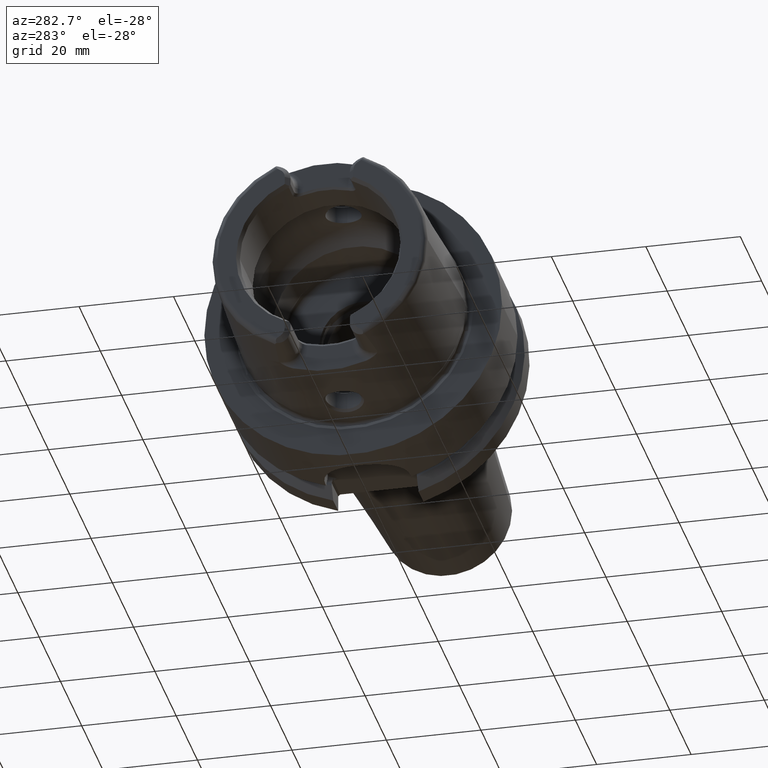
[diagram: clean part render]
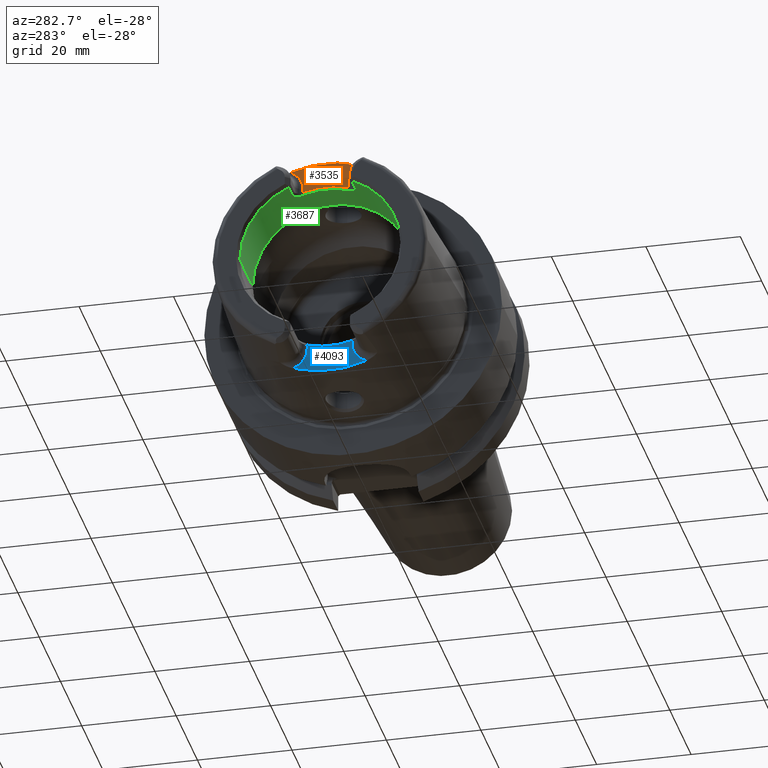
[diagram: same view with three faces highlighted in distinct colors, each labeled with its STEP entity id]
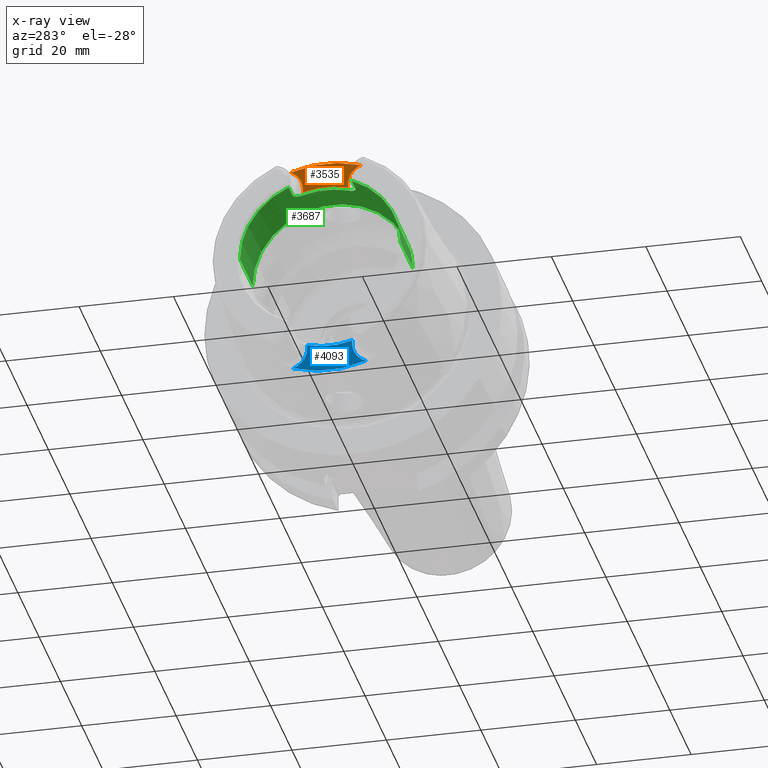
[diagram: x-ray of the same camera — body ghosted, the three highlighted faces saturated]
A machine part, auxiliary view with three faces highlighted in distinct colors.
The next image is the same camera in x-ray (body ghosted, the three faces saturated) — at least one of them is partly hidden behind the body in this view.
Their STEP definitions:

[orange] entity #3535 — the highlighted planar face has unit normal (-1, 0, 0).
#9=CARTESIAN_POINT('',(-2.6E1,0.E0,0.E0));
#10=DIRECTION('',(1.E0,0.E0,0.E0));
#11=DIRECTION('',(0.E0,3.233021702202E-1,9.462957818415E-1));
#12=AXIS2_PLACEMENT_3D('',#9,#10,#11);
#508=DIRECTION('',(0.E0,1.645939623868E-11,1.E0));
#509=VECTOR('',#508,8.529199916087E-1);
#510=CARTESIAN_POINT('',(-2.6E1,4.769999999986E0,1.681708000839E1));
#511=LINE('',#510,#509);
#512=CARTESIAN_POINT('',(-2.6E1,9.27E0,1.767E1));
#513=DIRECTION('',(-1.E0,0.E0,0.E0));
#514=DIRECTION('',(0.E0,-1.E0,0.E0));
#515=AXIS2_PLACEMENT_3D('',#512,#513,#514);
#517=CARTESIAN_POINT('',(-2.6E1,-9.27E0,1.767E1));
#518=DIRECTION('',(-1.E0,0.E0,0.E0));
#519=DIRECTION('',(0.E0,4.062693958732E-1,9.137533463560E-1));
#520=AXIS2_PLACEMENT_3D('',#517,#518,#519);
#522=DIRECTION('',(0.E0,1.641566002193E-11,-1.E0));
#523=VECTOR('',#522,8.529199916084E-1);
#524=CARTESIAN_POINT('',(-2.6E1,-4.770000000001E0,1.767E1));
#525=LINE('',#524,#523);
#526=CARTESIAN_POINT('',(-2.6E1,4.769999999986E0,1.681708000839E1));
#527=CARTESIAN_POINT('',(-2.6E1,4.148583737710E0,1.699873969073E1));
#528=CARTESIAN_POINT('',(-2.6E1,2.894384068626E0,1.728890718055E1));
#529=CARTESIAN_POINT('',(-2.6E1,9.681288020921E-1,1.750922547308E1));
#530=CARTESIAN_POINT('',(-2.6E1,-9.681288020820E-1,1.750922547309E1));
#531=CARTESIAN_POINT('',(-2.6E1,-2.894384068607E0,1.728890718055E1));
#532=CARTESIAN_POINT('',(-2.6E1,-4.148583737703E0,1.699873969073E1));
#533=CARTESIAN_POINT('',(-2.6E1,-4.769999999987E0,1.681708000839E1));
#2681=CARTESIAN_POINT('',(-2.6E1,4.77E0,1.767E1));
#2683=VERTEX_POINT('',#2681);
#2685=CARTESIAN_POINT('',(-2.6E1,-4.77E0,1.767E1));
#2687=VERTEX_POINT('',#2685);
#2689=CARTESIAN_POINT('',(-2.6E1,7.441787718571E0,2.178189005860E1));
#2690=VERTEX_POINT('',#2689);
#2695=CARTESIAN_POINT('',(-2.6E1,-7.441787718571E0,2.178189005860E1));
#2696=VERTEX_POINT('',#2695);
#2733=CARTESIAN_POINT('',(-2.6E1,4.769999999986E0,1.681708000839E1));
#2734=VERTEX_POINT('',#2733);
#2735=CARTESIAN_POINT('',(-2.6E1,-4.769999999987E0,1.681708000839E1));
#2736=VERTEX_POINT('',#2735);
#3521=CARTESIAN_POINT('',(-2.6E1,0.E0,0.E0));
#3522=DIRECTION('',(-1.E0,0.E0,0.E0));
#3523=DIRECTION('',(0.E0,0.E0,1.E0));
#3524=AXIS2_PLACEMENT_3D('',#3521,#3522,#3523);
#3525=PLANE('',#3524);
#3526=ORIENTED_EDGE('',*,*,#3432,.T.);
#3527=ORIENTED_EDGE('',*,*,#3450,.T.);
#3528=ORIENTED_EDGE('',*,*,#3095,.T.);
#3529=ORIENTED_EDGE('',*,*,#3156,.T.);
#3530=ORIENTED_EDGE('',*,*,#3174,.T.);
#3532=ORIENTED_EDGE('',*,*,#3531,.F.);
#3533=EDGE_LOOP('',(#3526,#3527,#3528,#3529,#3530,#3532));
#3534=FACE_OUTER_BOUND('',#3533,.F.);
#3535=ADVANCED_FACE('',(#3534),#3525,.T.);
#13=CIRCLE('',#12,2.301805680272E1);
#516=CIRCLE('',#515,4.5E0);
#521=CIRCLE('',#520,4.5E0);
#534=B_SPLINE_CURVE_WITH_KNOTS('',3,(#526,#527,#528,#529,#530,#531,#532,#533),
.UNSPECIFIED.,.F.,.F.,(4,1,1,1,1,4),(0.E0,2.E-1,4.E-1,6.E-1,8.E-1,1.E0),
.UNSPECIFIED.);
#3095=EDGE_CURVE('',#2690,#2696,#13,.T.);
#3156=EDGE_CURVE('',#2696,#2687,#521,.T.);
#3174=EDGE_CURVE('',#2687,#2736,#525,.T.);
#3432=EDGE_CURVE('',#2734,#2683,#511,.T.);
#3450=EDGE_CURVE('',#2683,#2690,#516,.T.);
#3531=EDGE_CURVE('',#2734,#2736,#534,.T.);

[blue] entity #4093 — the highlighted planar face has unit normal (-1, 0, 0).
#737=CARTESIAN_POINT('',(-2.2E1,-7.723914364163E0,-2.189606426911E1));
#751=CARTESIAN_POINT('',(-2.2E1,0.E0,0.E0));
#752=DIRECTION('',(1.E0,0.E0,0.E0));
#753=DIRECTION('',(0.E0,-3.326627708379E-1,-9.430458530201E-1));
#754=AXIS2_PLACEMENT_3D('',#751,#752,#753);
#844=CARTESIAN_POINT('',(-2.2E1,7.723914364163E0,-2.189606426911E1));
#921=CARTESIAN_POINT('',(-2.2E1,-4.769999999986E0,-1.681708000839E1));
#922=CARTESIAN_POINT('',(-2.2E1,-4.148583737705E0,-1.699873969073E1));
#923=CARTESIAN_POINT('',(-2.2E1,-2.894384068615E0,-1.728890718055E1));
#924=CARTESIAN_POINT('',(-2.2E1,-9.681288020891E-1,-1.750922547308E1));
#925=CARTESIAN_POINT('',(-2.2E1,9.681288020851E-1,-1.750922547308E1));
#926=CARTESIAN_POINT('',(-2.2E1,2.894384068608E0,-1.728890718055E1));
#927=CARTESIAN_POINT('',(-2.2E1,4.148583737702E0,-1.699873969073E1));
#928=CARTESIAN_POINT('',(-2.2E1,4.769999999986E0,-1.681708000839E1));
#930=DIRECTION('',(0.E0,-1.654478599520E-11,-1.E0));
#931=VECTOR('',#930,8.529199916086E-1);
#932=CARTESIAN_POINT('',(-2.2E1,-4.769999999986E0,-1.681708000839E1));
#933=LINE('',#932,#931);
#934=CARTESIAN_POINT('',(-2.2E1,-9.27E0,-1.767E1));
#935=DIRECTION('',(-1.E0,0.E0,0.E0));
#936=DIRECTION('',(0.E0,1.E0,0.E0));
#937=AXIS2_PLACEMENT_3D('',#934,#935,#936);
#939=CARTESIAN_POINT('',(-2.2E1,9.27E0,-1.767E1));
#940=DIRECTION('',(-1.E0,0.E0,0.E0));
#941=DIRECTION('',(0.E0,-3.435745857417E-1,-9.391253931358E-1));
#942=AXIS2_PLACEMENT_3D('',#939,#940,#941);
#944=DIRECTION('',(0.E0,-1.724560680178E-11,1.E0));
#945=VECTOR('',#944,8.529199916082E-1);
#946=CARTESIAN_POINT('',(-2.2E1,4.770000000001E0,-1.767E1));
#947=LINE('',#946,#945);
#2766=VERTEX_POINT('',#737);
#2767=VERTEX_POINT('',#844);
#2771=CARTESIAN_POINT('',(-2.2E1,-4.77E0,-1.767E1));
#2773=VERTEX_POINT('',#2771);
#2775=CARTESIAN_POINT('',(-2.2E1,4.77E0,-1.767E1));
#2777=VERTEX_POINT('',#2775);
#2783=VERTEX_POINT('',#921);
#2784=VERTEX_POINT('',#928);
#4078=CARTESIAN_POINT('',(-2.2E1,0.E0,0.E0));
#4079=DIRECTION('',(-1.E0,0.E0,0.E0));
#4080=DIRECTION('',(0.E0,0.E0,1.E0));
#4081=AXIS2_PLACEMENT_3D('',#4078,#4079,#4080);
#4082=PLANE('',#4081);
#4084=ORIENTED_EDGE('',*,*,#4083,.F.);
#4086=ORIENTED_EDGE('',*,*,#4085,.T.);
#4087=ORIENTED_EDGE('',*,*,#3874,.T.);
#4088=ORIENTED_EDGE('',*,*,#3893,.T.);
#4089=ORIENTED_EDGE('',*,*,#3950,.T.);
#4090=ORIENTED_EDGE('',*,*,#4071,.T.);
#4091=EDGE_LOOP('',(#4084,#4086,#4087,#4088,#4089,#4090));
#4092=FACE_OUTER_BOUND('',#4091,.F.);
#4093=ADVANCED_FACE('',(#4092),#4082,.T.);
#755=CIRCLE('',#754,2.321845136054E1);
#929=B_SPLINE_CURVE_WITH_KNOTS('',3,(#921,#922,#923,#924,#925,#926,#927,#928),
.UNSPECIFIED.,.F.,.F.,(4,1,1,1,1,4),(0.E0,2.E-1,4.E-1,6.E-1,8.E-1,1.E0),
.UNSPECIFIED.);
#938=CIRCLE('',#937,4.5E0);
#943=CIRCLE('',#942,4.5E0);
#3874=EDGE_CURVE('',#2773,#2766,#938,.T.);
#3893=EDGE_CURVE('',#2766,#2767,#755,.T.);
#3950=EDGE_CURVE('',#2767,#2777,#943,.T.);
#4071=EDGE_CURVE('',#2777,#2784,#947,.T.);
#4083=EDGE_CURVE('',#2783,#2784,#929,.T.);
#4085=EDGE_CURVE('',#2783,#2773,#933,.T.);

[green] entity #3687 — the highlighted cylindrical surface (partial cylindrical patch) has radius 17 mm, axis along (1, 0, 0).
#362=CARTESIAN_POINT('',(-3.1E1,0.E0,0.E0));
#363=DIRECTION('',(1.E0,0.E0,0.E0));
#364=DIRECTION('',(0.E0,1.E0,0.E0));
#365=AXIS2_PLACEMENT_3D('',#362,#363,#364);
#394=CARTESIAN_POINT('',(-3.1E1,0.E0,0.E0));
#395=DIRECTION('',(1.E0,0.E0,0.E0));
#396=DIRECTION('',(0.E0,-3.910839598454E-1,9.203550056102E-1));
#397=AXIS2_PLACEMENT_3D('',#394,#395,#396);
#559=DIRECTION('',(1.E0,0.E0,0.E0));
#560=VECTOR('',#559,3.5E0);
#561=CARTESIAN_POINT('',(-3.1E1,6.648427317371E0,1.564603509537E1));
#562=LINE('',#561,#560);
#563=CARTESIAN_POINT('',(-2.571132486541E1,4.77E0,1.631708000838E1));
#564=CARTESIAN_POINT('',(-2.570911463045E1,4.851899929325E0,1.629313806150E1));
#565=CARTESIAN_POINT('',(-2.571539985496E1,5.014300274441E0,1.624433189365E1));
#566=CARTESIAN_POINT('',(-2.575723226820E1,5.255574737127E0,1.616786516493E1));
#567=CARTESIAN_POINT('',(-2.583019759937E1,5.488813832187E0,1.609012650164E1));
#568=CARTESIAN_POINT('',(-2.593222755914E1,5.709311810621E0,1.601314455534E1));
#569=CARTESIAN_POINT('',(-2.606208908479E1,5.913640570765E0,1.593873381343E1));
#570=CARTESIAN_POINT('',(-2.621579663552E1,6.097621457296E0,1.586916363348E1));
#571=CARTESIAN_POINT('',(-2.639004084082E1,6.257927374534E0,1.580654307494E1));
#572=CARTESIAN_POINT('',(-2.658287946713E1,6.394281114327E0,1.575179653388E1));
#573=CARTESIAN_POINT('',(-2.679414325254E1,6.504885265694E0,1.570637036291E1));
#574=CARTESIAN_POINT('',(-2.702072491693E1,6.586740689310E0,1.567215753589E1));
#575=CARTESIAN_POINT('',(-2.725841410654E1,6.637201205541E0,1.565081274977E1));
#576=CARTESIAN_POINT('',(-2.741884128981E1,6.648427317371E0,1.564603509537E1));
#577=CARTESIAN_POINT('',(-2.75E1,6.648427317371E0,1.564603509537E1));
#579=CARTESIAN_POINT('',(-2.571132486541E1,-4.77E0,1.631708000838E1));
#580=CARTESIAN_POINT('',(-2.571132486541E1,-4.151241293882E0,1.649796280277E1));
#581=CARTESIAN_POINT('',(-2.571132889067E1,-2.893125957956E0,1.678926713017E1));
#582=CARTESIAN_POINT('',(-2.571132738120E1,-9.685489423330E-1,
1.700915920873E1));
#583=CARTESIAN_POINT('',(-2.571132738120E1,9.685489423332E-1,1.700915920873E1));
#584=CARTESIAN_POINT('',(-2.571132889067E1,2.893125957955E0,1.678926713017E1));
#585=CARTESIAN_POINT('',(-2.571132486541E1,4.151241293884E0,1.649796280277E1));
#586=CARTESIAN_POINT('',(-2.571132486541E1,4.77E0,1.631708000838E1));
#588=CARTESIAN_POINT('',(-2.75E1,-6.648427317371E0,1.564603509537E1));
#589=CARTESIAN_POINT('',(-2.741886739757E1,-6.648427317371E0,1.564603509537E1));
#590=CARTESIAN_POINT('',(-2.725846026145E1,-6.637216591931E0,1.565080624648E1));
#591=CARTESIAN_POINT('',(-2.702047669465E1,-6.586680175792E0,1.567218311946E1));
#592=CARTESIAN_POINT('',(-2.679396033382E1,-6.504789416100E0,1.570640995358E1));
#593=CARTESIAN_POINT('',(-2.658322850975E1,-6.394447887183E0,1.575172726773E1));
#594=CARTESIAN_POINT('',(-2.639118887217E1,-6.258799446744E0,1.580619508840E1));
#595=CARTESIAN_POINT('',(-2.621738949273E1,-6.099242016698E0,1.586853752436E1));
#596=CARTESIAN_POINT('',(-2.606384631874E1,-5.916012648986E0,1.593785105703E1));
#597=CARTESIAN_POINT('',(-2.593366664869E1,-5.711955003317E0,1.601220141386E1));
#598=CARTESIAN_POINT('',(-2.583107108488E1,-5.491206341112E0,1.608931480424E1));
#599=CARTESIAN_POINT('',(-2.575746962839E1,-5.256749499660E0,1.616748882623E1));
#600=CARTESIAN_POINT('',(-2.571543732099E1,-5.014873021211E0,1.624415783103E1));
#601=CARTESIAN_POINT('',(-2.570911008721E1,-4.852068278437E0,1.629308884771E1));
#602=CARTESIAN_POINT('',(-2.571132486541E1,-4.77E0,1.631708000838E1));
#604=DIRECTION('',(1.E0,0.E0,0.E0));
#605=VECTOR('',#604,3.5E0);
#606=CARTESIAN_POINT('',(-3.1E1,-6.648427317371E0,1.564603509537E1));
#607=LINE('',#606,#605);
#608=CARTESIAN_POINT('',(-1.899602540378E1,0.E0,0.E0));
#609=DIRECTION('',(1.E0,0.E0,0.E0));
#610=DIRECTION('',(0.E0,1.E0,0.E0));
#611=AXIS2_PLACEMENT_3D('',#608,#609,#610);
#666=DIRECTION('',(-1.E0,0.E0,0.E0));
#667=VECTOR('',#666,1.200397459622E1);
#668=CARTESIAN_POINT('',(-1.899602540378E1,1.7E1,0.E0));
#669=LINE('',#668,#667);
#675=DIRECTION('',(-1.E0,0.E0,0.E0));
#676=VECTOR('',#675,1.200397459622E1);
#677=CARTESIAN_POINT('',(-1.899602540378E1,-1.7E1,0.E0));
#678=LINE('',#677,#676);
#2660=CARTESIAN_POINT('',(-1.899602540378E1,1.7E1,0.E0));
#2661=VERTEX_POINT('',#2660);
#2662=CARTESIAN_POINT('',(-3.1E1,1.7E1,0.E0));
#2663=VERTEX_POINT('',#2662);
#2672=CARTESIAN_POINT('',(-1.899602540378E1,-1.7E1,0.E0));
#2673=VERTEX_POINT('',#2672);
#2674=CARTESIAN_POINT('',(-3.1E1,-1.7E1,0.E0));
#2675=VERTEX_POINT('',#2674);
#2741=CARTESIAN_POINT('',(-2.75E1,6.648427317371E0,1.564603509537E1));
#2742=VERTEX_POINT('',#2741);
#2743=CARTESIAN_POINT('',(-2.571132486541E1,4.77E0,1.631708000838E1));
#2744=VERTEX_POINT('',#2743);
#2745=CARTESIAN_POINT('',(-2.75E1,-6.648427317371E0,1.564603509537E1));
#2746=VERTEX_POINT('',#2745);
#2747=CARTESIAN_POINT('',(-2.571132486541E1,-4.77E0,1.631708000838E1));
#2748=VERTEX_POINT('',#2747);
#2753=CARTESIAN_POINT('',(-3.1E1,6.648427317371E0,1.564603509537E1));
#2754=VERTEX_POINT('',#2753);
#2755=CARTESIAN_POINT('',(-3.1E1,-6.648427317371E0,1.564603509537E1));
#2756=VERTEX_POINT('',#2755);
#3666=CARTESIAN_POINT('',(-3.41E1,0.E0,0.E0));
#3667=DIRECTION('',(1.E0,0.E0,0.E0));
#3668=DIRECTION('',(0.E0,-1.E0,0.E0));
#3669=AXIS2_PLACEMENT_3D('',#3666,#3667,#3668);
#3670=CYLINDRICAL_SURFACE('',#3669,1.7E1);
#3671=ORIENTED_EDGE('',*,*,#3403,.T.);
#3673=ORIENTED_EDGE('',*,*,#3672,.F.);
#3674=ORIENTED_EDGE('',*,*,#3551,.F.);
#3675=ORIENTED_EDGE('',*,*,#3606,.F.);
#3676=ORIENTED_EDGE('',*,*,#3621,.F.);
#3677=ORIENTED_EDGE('',*,*,#3368,.T.);
#3679=ORIENTED_EDGE('',*,*,#3678,.F.);
#3681=ORIENTED_EDGE('',*,*,#3680,.F.);
#3683=ORIENTED_EDGE('',*,*,#3682,.T.);
#3684=ORIENTED_EDGE('',*,*,#3348,.T.);
#3685=EDGE_LOOP('',(#3671,#3673,#3674,#3675,#3676,#3677,#3679,#3681,#3683,
#3684));
#3686=FACE_OUTER_BOUND('',#3685,.F.);
#3687=ADVANCED_FACE('',(#3686),#3670,.F.);
#366=CIRCLE('',#365,1.7E1);
#398=CIRCLE('',#397,1.7E1);
#578=B_SPLINE_CURVE_WITH_KNOTS('',3,(#563,#564,#565,#566,#567,#568,#569,#570,
#571,#572,#573,#574,#575,#576,#577),.UNSPECIFIED.,.F.,.F.,(4,1,1,1,1,1,1,1,1,1,
1,1,4),(0.E0,8.333333333333E-2,1.666666666667E-1,2.5E-1,3.333333333333E-1,
4.166666666667E-1,5.E-1,5.833333333333E-1,6.666666666667E-1,7.5E-1,
8.333333333333E-1,9.166666666667E-1,1.E0),.UNSPECIFIED.);
#587=B_SPLINE_CURVE_WITH_KNOTS('',3,(#579,#580,#581,#582,#583,#584,#585,#586),
.UNSPECIFIED.,.F.,.F.,(4,1,1,1,1,4),(0.E0,2.E-1,4.E-1,6.E-1,8.E-1,1.E0),
.UNSPECIFIED.);
#603=B_SPLINE_CURVE_WITH_KNOTS('',3,(#588,#589,#590,#591,#592,#593,#594,#595,
#596,#597,#598,#599,#600,#601,#602),.UNSPECIFIED.,.F.,.F.,(4,1,1,1,1,1,1,1,1,1,
1,1,4),(0.E0,8.333333333333E-2,1.666666666667E-1,2.5E-1,3.333333333333E-1,
4.166666666667E-1,5.E-1,5.833333333333E-1,6.666666666667E-1,7.5E-1,
8.333333333333E-1,9.166666666667E-1,1.E0),.UNSPECIFIED.);
#612=CIRCLE('',#611,1.7E1);
#3348=EDGE_CURVE('',#2663,#2754,#366,.T.);
#3368=EDGE_CURVE('',#2756,#2675,#398,.T.);
#3403=EDGE_CURVE('',#2754,#2742,#562,.T.);
#3551=EDGE_CURVE('',#2748,#2744,#587,.T.);
#3606=EDGE_CURVE('',#2746,#2748,#603,.T.);
#3621=EDGE_CURVE('',#2756,#2746,#607,.T.);
#3672=EDGE_CURVE('',#2744,#2742,#578,.T.);
#3678=EDGE_CURVE('',#2673,#2675,#678,.T.);
#3680=EDGE_CURVE('',#2661,#2673,#612,.T.);
#3682=EDGE_CURVE('',#2661,#2663,#669,.T.);